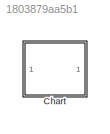
MODEL slx_1803879aa5b1
KIND model
CONFIG AbsTol = auto
CONFIG EnableMultiTasking = on
CONFIG FixedStep = 0.1
CONFIG MaxStep = auto
CONFIG MinStep = auto
CONFIG RelTol = 1e-3
CONFIG SampleTimeConstraint = Unconstrained
CONFIG Solver = FixedStepDiscrete
CONFIG SolverName = FixedStepDiscrete
CONFIG StartTime = 0.0
CONFIG StopTime = 0.1
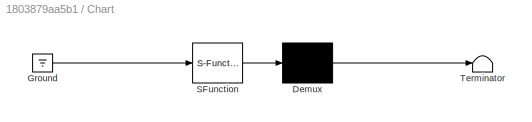
BLOCK [SubSystem] Chart
  ErrorFcn = Stateflow.Translate.translate
  PermitHierarchicalResolution = ExplicitOnly
  Ports = []
  RequestExecContextInheritance = off
  SFBlockType = Chart
  TreatAsAtomicUnit = on
BLOCK [Demux] Chart/ Demux 
  Outputs = 1
  Ports = [1, 1]
BLOCK [Ground] Chart/ Ground 
BLOCK [S-Function] Chart/ SFunction 
  EnableBusSupport = on
  FunctionName = sf_sfun
  PortCounts = [1 1]
  Ports = [1, 1]
  SFcnIsStateOwnerBlock = off
  SFunctionDeploymentMode = off
  Tag = Stateflow S-Function 3
BLOCK [Terminator] Chart/ Terminator 
CHART Chart states=7 transitions=5
  STATE_LABEL 'A'
  STATE_LABEL 'A1'
  STATE_LABEL 'A2\nen: fprintf("en_A2")'
  STATE_LABEL 'A3\nen: fprintf("en_A3")'
  STATE_LABEL '{x=-1;}'
  STATE_LABEL 'E{fprintf("a")}'
  STATE_LABEL 'E{fprintf("a2")}'
  STATE_LABEL 'A1'
  STATE_LABEL 'A2\nen: fprintf("en_A2")'
  STATE_LABEL 'A3\nen: fprintf("en_A3")'
  STATE_LABEL 'B'
  STATE_LABEL 'B1'
  STATE_LABEL 'B2\nen: fprintf("en_B2")'
  STATE_LABEL '{fprintf("b")}/{E;fprintf("tb")}'
  STATE_LABEL 'B1'
  STATE_LABEL 'B2\nen: fprintf("en_B2")'
CHART  states=0 transitions=0
